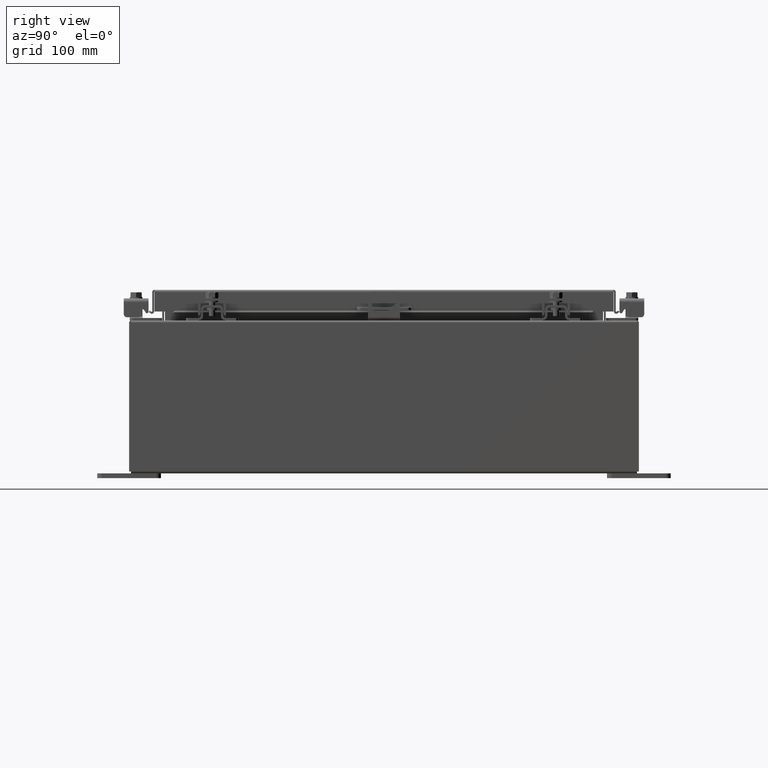
[diagram: clean part render]
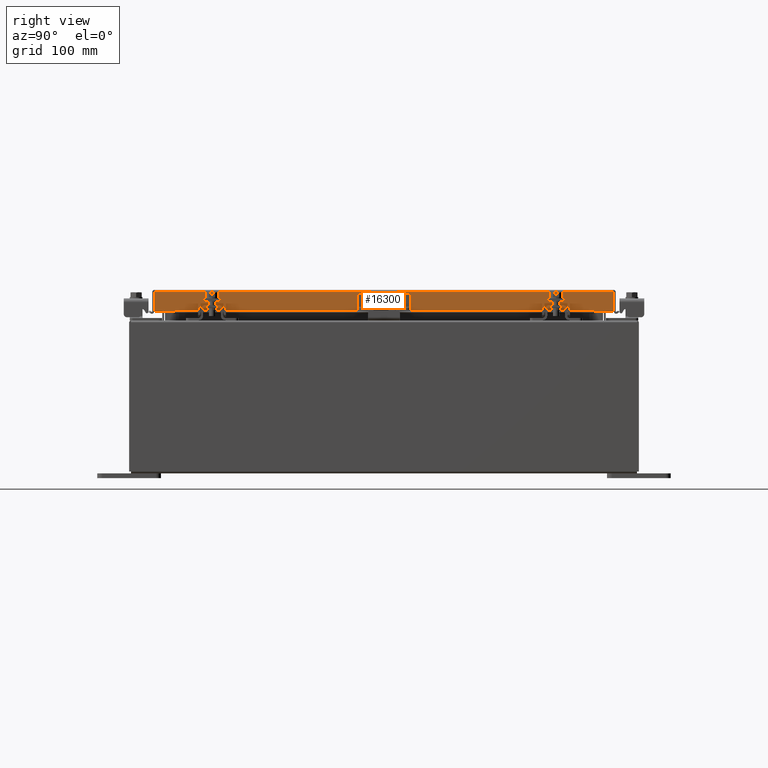
[diagram: same view with one face highlighted and labeled with its STEP entity id]
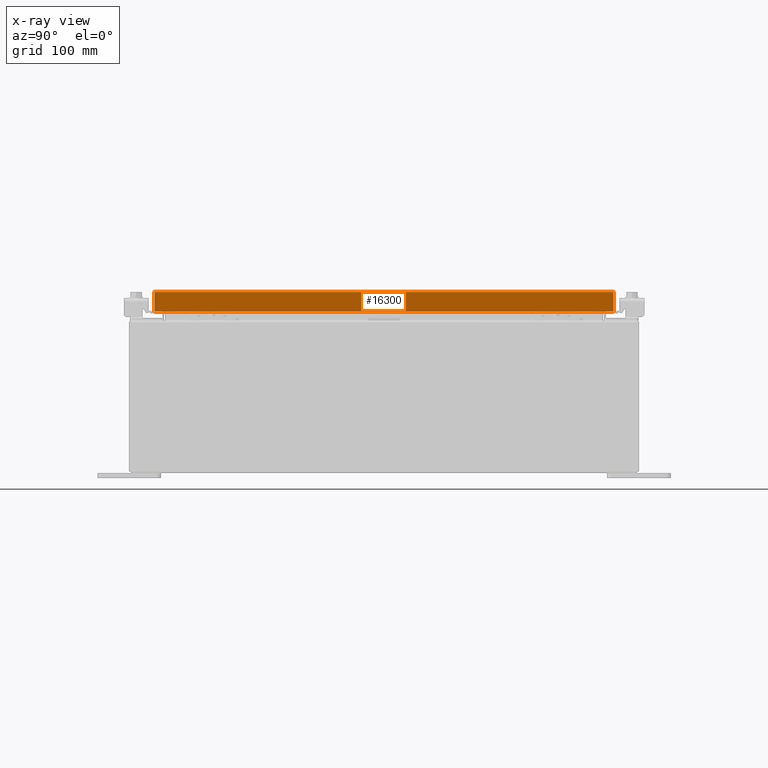
[diagram: x-ray of the same camera — body ghosted, the highlighted face saturated]
A machine part, right view. The second image highlights one B-rep face of the part: STEP entity #16300.
The next image is the same camera in x-ray: the body ghosted, the highlighted face saturated — about 0% of this face is hidden behind the body in this view.
In plain terms, the highlighted planar face has unit normal (1, 0, 0).
Its self-contained STEP definition (entity closure, byte-faithful):
#124 = CARTESIAN_POINT ( 'NONE',  ( 7.078000000000002100, 0.0000000000000000000, -0.08770000000000007000 ) ) ;
#479 = CARTESIAN_POINT ( 'NONE',  ( 7.078000000000002100, -9.005157864376267100, -0.07469999999999978000 ) ) ;
#480 = VERTEX_POINT ( 'NONE', #27040 ) ;
#492 = ORIENTED_EDGE ( 'NONE', *, *, #14256, .T. ) ;
#1511 = CARTESIAN_POINT ( 'NONE',  ( 7.078000000000002100, -9.005157864376267100, -0.08770000000000007000 ) ) ;
#1892 = EDGE_CURVE ( 'NONE', #19703, #28603, #7979, .T. ) ;
#1898 = VECTOR ( 'NONE', #15713, 39.37007874015748100 ) ;
#2432 = CARTESIAN_POINT ( 'NONE',  ( 7.078000000000004700, 9.005157864376274200, -0.8499999999999996400 ) ) ;
#2681 = DIRECTION ( 'NONE',  ( 2.818880942772360100E-015, 0.0000000000000000000, -1.000000000000000000 ) ) ;
#3025 = ORIENTED_EDGE ( 'NONE', *, *, #1892, .F. ) ;
#4153 = LINE ( 'NONE', #20986, #28364 ) ;
#4676 = LINE ( 'NONE', #124, #16069 ) ;
#5838 = CARTESIAN_POINT ( 'NONE',  ( 7.078000000000001200, 8.255157864376270600, -0.8500000000000024200 ) ) ;
#6235 = FACE_OUTER_BOUND ( 'NONE', #14468, .T. ) ;
#7148 = VECTOR ( 'NONE', #10414, 39.37007874015748100 ) ;
#7799 = CARTESIAN_POINT ( 'NONE',  ( 7.078000000000004700, -9.093999999999999400, -0.8499999999999996400 ) ) ;
#7979 = LINE ( 'NONE', #16094, #1898 ) ;
#8761 = VERTEX_POINT ( 'NONE', #1511 ) ;
#9203 = DIRECTION ( 'NONE',  ( 0.0000000000000000000, -1.000000000000000000, 0.0000000000000000000 ) ) ;
#9457 = CARTESIAN_POINT ( 'NONE',  ( 7.078000000000002100, 0.0000000000000000000, 2.021285296895435400E-014 ) ) ;
#9556 = DIRECTION ( 'NONE',  ( -2.818880942772360100E-015, -6.982962677686265900E-015, 1.000000000000000000 ) ) ;
#9644 = DIRECTION ( 'NONE',  ( -2.818880942772360100E-015, -6.982962677686265900E-015, 1.000000000000000000 ) ) ;
#10232 = VECTOR ( 'NONE', #9556, 39.37007874015748100 ) ;
#10414 = DIRECTION ( 'NONE',  ( 0.0000000000000000000, -1.000000000000000000, 0.0000000000000000000 ) ) ;
#10500 = ORIENTED_EDGE ( 'NONE', *, *, #29313, .F. ) ;
#11966 = CARTESIAN_POINT ( 'NONE',  ( 7.078000000000001200, 8.255157864376270600, -0.8500000000000024200 ) ) ;
#14238 = EDGE_CURVE ( 'NONE', #28603, #8761, #29079, .T. ) ;
#14256 = EDGE_CURVE ( 'NONE', #28143, #480, #4153, .T. ) ;
#14468 = EDGE_LOOP ( 'NONE', ( #17976, #3025, #10500, #24206, #492, #22983 ) ) ;
#15713 = DIRECTION ( 'NONE',  ( 0.0000000000000000000, -1.000000000000000000, 0.0000000000000000000 ) ) ;
#16069 = VECTOR ( 'NONE', #9203, 39.37007874015748100 ) ;
#16094 = CARTESIAN_POINT ( 'NONE',  ( 7.078000000000004700, -9.093999999999999400, -0.8499999999999996400 ) ) ;
#16300 = ADVANCED_FACE ( 'NONE', ( #6235 ), #23075, .T. ) ;
#16304 = DIRECTION ( 'NONE',  ( 1.000000000000000000, 0.0000000000000000000, 2.818880942772360100E-015 ) ) ;
#17976 = ORIENTED_EDGE ( 'NONE', *, *, #14238, .F. ) ;
#18603 = CARTESIAN_POINT ( 'NONE',  ( 7.078000000000001200, -8.255157864376260000, -0.8500000000000024200 ) ) ;
#19703 = VERTEX_POINT ( 'NONE', #18603 ) ;
#20083 = AXIS2_PLACEMENT_3D ( 'NONE', #9457, #16304, #2681 ) ;
#20986 = CARTESIAN_POINT ( 'NONE',  ( 7.078000000000002100, 9.005157864376268900, 8.309553424256680500E-014 ) ) ;
#21412 = DIRECTION ( 'NONE',  ( 0.0000000000000000000, -1.000000000000000000, 0.0000000000000000000 ) ) ;
#22752 = EDGE_CURVE ( 'NONE', #28143, #24416, #24871, .T. ) ;
#22983 = ORIENTED_EDGE ( 'NONE', *, *, #28147, .T. ) ;
#23075 = PLANE ( 'NONE',  #20083 ) ;
#24166 = VECTOR ( 'NONE', #21412, 39.37007874015748100 ) ;
#24206 = ORIENTED_EDGE ( 'NONE', *, *, #22752, .F. ) ;
#24416 = VERTEX_POINT ( 'NONE', #11966 ) ;
#24871 = LINE ( 'NONE', #7799, #24166 ) ;
#25045 = CARTESIAN_POINT ( 'NONE',  ( 7.078000000000004700, -9.005157864376261800, -0.8499999999999996400 ) ) ;
#25232 = LINE ( 'NONE', #5838, #7148 ) ;
#27040 = CARTESIAN_POINT ( 'NONE',  ( 7.078000000000002100, 9.005157864376270600, -0.08770000000000007000 ) ) ;
#28143 = VERTEX_POINT ( 'NONE', #2432 ) ;
#28147 = EDGE_CURVE ( 'NONE', #480, #8761, #4676, .T. ) ;
#28364 = VECTOR ( 'NONE', #9644, 39.37007874015748100 ) ;
#28603 = VERTEX_POINT ( 'NONE', #25045 ) ;
#29079 = LINE ( 'NONE', #479, #10232 ) ;
#29313 = EDGE_CURVE ( 'NONE', #24416, #19703, #25232, .T. ) ;